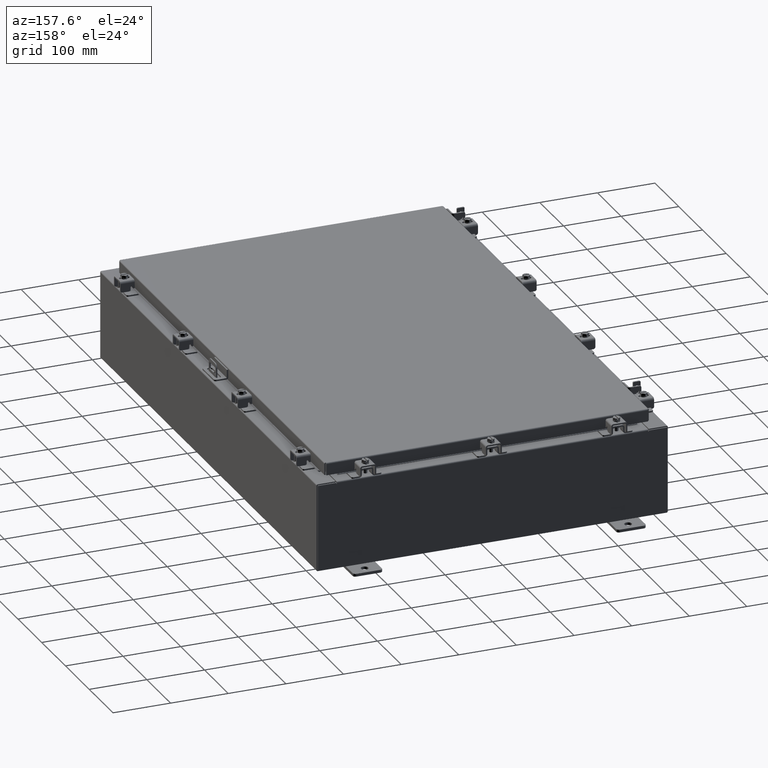
[diagram: clean part render]
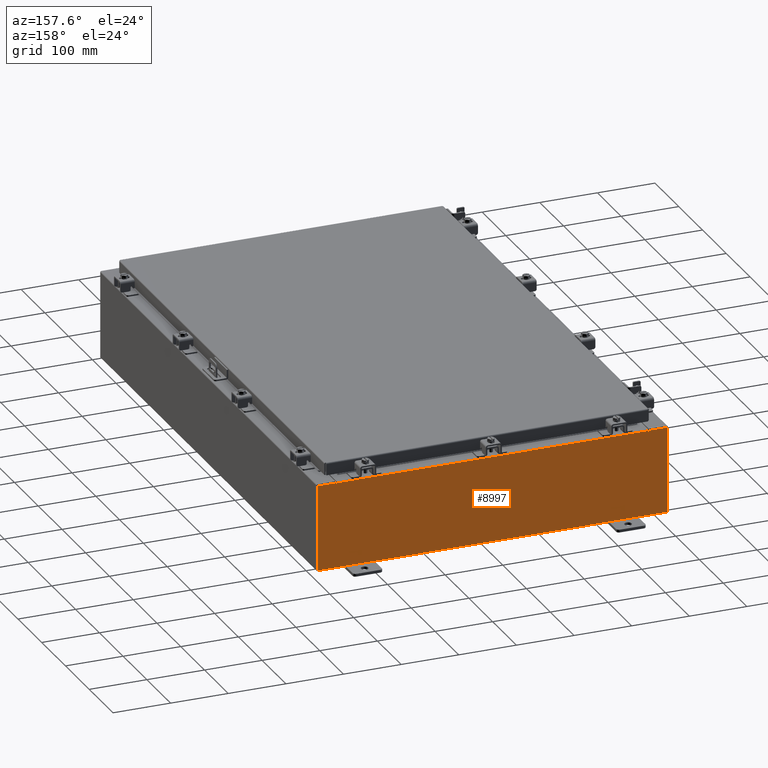
[diagram: same view with one face highlighted and labeled with its STEP entity id]
A machine part, auxiliary view. The second image highlights one B-rep face of the part: STEP entity #8997.
In plain terms, the highlighted planar face has unit normal (0, -1, 0).
Its self-contained STEP definition (entity closure, byte-faithful):
#12 = VECTOR ( 'NONE', #7814, 39.37007874015748100 ) ;
#78 = DIRECTION ( 'NONE',  ( 0.0000000000000000000, 0.0000000000000000000, -1.000000000000000000 ) ) ;
#374 = CARTESIAN_POINT ( 'NONE',  ( -10.63720000000000400, -0.0000000000000000000, 2.874950000000000600 ) ) ;
#531 = EDGE_CURVE ( 'NONE', #13784, #8247, #21600, .T. ) ;
#532 = VECTOR ( 'NONE', #11277, 39.37007874015748100 ) ;
#807 = CARTESIAN_POINT ( 'NONE',  ( -10.67455000000000200, 0.0000000000000000000, 2.874950000000000600 ) ) ;
#988 = EDGE_CURVE ( 'NONE', #16750, #14414, #4173, .T. ) ;
#1484 = DIRECTION ( 'NONE',  ( 1.000000000000000000, 0.0000000000000000000, 0.0000000000000000000 ) ) ;
#1599 = CARTESIAN_POINT ( 'NONE',  ( -11.92530000000000000, 0.0000000000000000000, -2.925299999999999600 ) ) ;
#1791 = CARTESIAN_POINT ( 'NONE',  ( -10.67455000000000200, -0.0000000000000000000, 0.0000000000000000000 ) ) ;
#2535 = DIRECTION ( 'NONE',  ( 0.0000000000000000000, 0.0000000000000000000, -1.000000000000000000 ) ) ;
#2871 = EDGE_LOOP ( 'NONE', ( #4630, #16669, #5436, #3304, #4879, #16735, #9293, #12638, #8279, #15076, #8925, #9787 ) ) ;
#2906 = VERTEX_POINT ( 'NONE', #807 ) ;
#3304 = ORIENTED_EDGE ( 'NONE', *, *, #988, .T. ) ;
#3355 = VECTOR ( 'NONE', #14492, 39.37007874015748100 ) ;
#3396 = EDGE_CURVE ( 'NONE', #16750, #6821, #9031, .T. ) ;
#3407 = DIRECTION ( 'NONE',  ( -1.000000000000000000, -0.0000000000000000000, -0.0000000000000000000 ) ) ;
#3509 = CIRCLE ( 'NONE', #20834, 0.01867499999999949400 ) ;
#3512 = LINE ( 'NONE', #9590, #12519 ) ;
#3785 = CARTESIAN_POINT ( 'NONE',  ( -11.92530000000000000, 0.0000000000000000000, -2.925299999999999600 ) ) ;
#4173 = LINE ( 'NONE', #15297, #22713 ) ;
#4423 = FACE_OUTER_BOUND ( 'NONE', #2871, .T. ) ;
#4489 = LINE ( 'NONE', #23182, #21912 ) ;
#4630 = ORIENTED_EDGE ( 'NONE', *, *, #7442, .F. ) ;
#4776 = CARTESIAN_POINT ( 'NONE',  ( 10.67455000000000200, 0.0000000000000000000, 2.925300000000000500 ) ) ;
#4793 = LINE ( 'NONE', #14976, #12 ) ;
#4796 = EDGE_CURVE ( 'NONE', #8247, #14414, #4489, .T. ) ;
#4879 = ORIENTED_EDGE ( 'NONE', *, *, #4796, .F. ) ;
#5102 = CARTESIAN_POINT ( 'NONE',  ( -11.92530000000000000, 0.0000000000000000000, 2.925300000000000500 ) ) ;
#5335 = EDGE_CURVE ( 'NONE', #6480, #13784, #18232, .T. ) ;
#5436 = ORIENTED_EDGE ( 'NONE', *, *, #3396, .F. ) ;
#5639 = PLANE ( 'NONE',  #9253 ) ;
#6269 = VERTEX_POINT ( 'NONE', #18620 ) ;
#6480 = VERTEX_POINT ( 'NONE', #4776 ) ;
#6821 = VERTEX_POINT ( 'NONE', #374 ) ;
#6993 = DIRECTION ( 'NONE',  ( 0.0000000000000000000, 0.0000000000000000000, 1.000000000000000000 ) ) ;
#7306 = EDGE_CURVE ( 'NONE', #6480, #14440, #21055, .T. ) ;
#7330 = VERTEX_POINT ( 'NONE', #5102 ) ;
#7362 = CARTESIAN_POINT ( 'NONE',  ( 0.0000000000000000000, 0.0000000000000000000, 0.0000000000000000000 ) ) ;
#7442 = EDGE_CURVE ( 'NONE', #2906, #13424, #17701, .T. ) ;
#7610 = EDGE_CURVE ( 'NONE', #8750, #7330, #19646, .T. ) ;
#7814 = DIRECTION ( 'NONE',  ( 0.0000000000000000000, 0.0000000000000000000, -1.000000000000000000 ) ) ;
#8247 = VERTEX_POINT ( 'NONE', #22258 ) ;
#8279 = ORIENTED_EDGE ( 'NONE', *, *, #17977, .T. ) ;
#8750 = VERTEX_POINT ( 'NONE', #3785 ) ;
#8925 = ORIENTED_EDGE ( 'NONE', *, *, #7610, .T. ) ;
#8997 = ADVANCED_FACE ( 'NONE', ( #4423 ), #5639, .F. ) ;
#9031 = LINE ( 'NONE', #16910, #13263 ) ;
#9224 = DIRECTION ( 'NONE',  ( 0.0000000000000000000, -1.000000000000000000, 0.0000000000000000000 ) ) ;
#9253 = AXIS2_PLACEMENT_3D ( 'NONE', #7362, #9224, #21809 ) ;
#9293 = ORIENTED_EDGE ( 'NONE', *, *, #5335, .F. ) ;
#9514 = EDGE_CURVE ( 'NONE', #6269, #8750, #22915, .T. ) ;
#9590 = CARTESIAN_POINT ( 'NONE',  ( -11.92530000000000000, 0.0000000000000000000, 2.925300000000000500 ) ) ;
#9787 = ORIENTED_EDGE ( 'NONE', *, *, #9826, .T. ) ;
#9826 = EDGE_CURVE ( 'NONE', #7330, #13424, #3512, .T. ) ;
#9831 = CARTESIAN_POINT ( 'NONE',  ( 10.65587500000000200, 0.0000000000000000000, 2.874950000000000600 ) ) ;
#9906 = DIRECTION ( 'NONE',  ( -0.0000000000000000000, 1.000000000000000000, -0.0000000000000000000 ) ) ;
#10828 = DIRECTION ( 'NONE',  ( -0.0000000000000000000, 1.000000000000000000, -0.0000000000000000000 ) ) ;
#11277 = DIRECTION ( 'NONE',  ( -0.0000000000000000000, -0.0000000000000000000, 1.000000000000000000 ) ) ;
#11507 = VECTOR ( 'NONE', #1484, 39.37007874015748100 ) ;
#12519 = VECTOR ( 'NONE', #18553, 39.37007874015748100 ) ;
#12638 = ORIENTED_EDGE ( 'NONE', *, *, #7306, .T. ) ;
#13263 = VECTOR ( 'NONE', #2535, 39.37007874015748100 ) ;
#13424 = VERTEX_POINT ( 'NONE', #15908 ) ;
#13662 = DIRECTION ( 'NONE',  ( -4.340572780400004900E-014, 0.0000000000000000000, -1.000000000000000000 ) ) ;
#13784 = VERTEX_POINT ( 'NONE', #16824 ) ;
#14237 = EDGE_CURVE ( 'NONE', #6821, #2906, #3509, .T. ) ;
#14414 = VERTEX_POINT ( 'NONE', #16658 ) ;
#14440 = VERTEX_POINT ( 'NONE', #18529 ) ;
#14492 = DIRECTION ( 'NONE',  ( 0.0000000000000000000, 0.0000000000000000000, 1.000000000000000000 ) ) ;
#14976 = CARTESIAN_POINT ( 'NONE',  ( 11.92530000000000000, 0.0000000000000000000, 2.925300000000000500 ) ) ;
#15076 = ORIENTED_EDGE ( 'NONE', *, *, #9514, .T. ) ;
#15186 = DIRECTION ( 'NONE',  ( 0.0000000000000000000, 0.0000000000000000000, -1.000000000000000000 ) ) ;
#15297 = CARTESIAN_POINT ( 'NONE',  ( -10.63720000000000400, 1.024442997624098700E-016, 2.912300000000000600 ) ) ;
#15908 = CARTESIAN_POINT ( 'NONE',  ( -10.67455000000000200, 0.0000000000000000000, 2.925300000000000500 ) ) ;
#16658 = CARTESIAN_POINT ( 'NONE',  ( 10.63720000000000400, 0.0000000000000000000, 2.912300000000000600 ) ) ;
#16669 = ORIENTED_EDGE ( 'NONE', *, *, #14237, .F. ) ;
#16735 = ORIENTED_EDGE ( 'NONE', *, *, #531, .F. ) ;
#16750 = VERTEX_POINT ( 'NONE', #22242 ) ;
#16824 = CARTESIAN_POINT ( 'NONE',  ( 10.67455000000000200, 0.0000000000000000000, 2.874950000000000600 ) ) ;
#16910 = CARTESIAN_POINT ( 'NONE',  ( -10.63720000000000400, -0.0000000000000000000, 0.0000000000000000000 ) ) ;
#17587 = VECTOR ( 'NONE', #3407, 39.37007874015748100 ) ;
#17701 = LINE ( 'NONE', #1791, #3355 ) ;
#17977 = EDGE_CURVE ( 'NONE', #14440, #6269, #4793, .T. ) ;
#18052 = AXIS2_PLACEMENT_3D ( 'NONE', #9831, #9906, #15186 ) ;
#18232 = LINE ( 'NONE', #18993, #22440 ) ;
#18529 = CARTESIAN_POINT ( 'NONE',  ( 11.92530000000000000, 0.0000000000000000000, 2.925300000000000500 ) ) ;
#18553 = DIRECTION ( 'NONE',  ( 1.000000000000000000, 0.0000000000000000000, 0.0000000000000000000 ) ) ;
#18620 = CARTESIAN_POINT ( 'NONE',  ( 11.92530000000000000, 0.0000000000000000000, -2.925299999999999600 ) ) ;
#18993 = CARTESIAN_POINT ( 'NONE',  ( 10.67454999999987700, -0.0000000000000000000, -4.633366117301834200E-013 ) ) ;
#19343 = CARTESIAN_POINT ( 'NONE',  ( -11.92530000000000000, 0.0000000000000000000, 2.925300000000000500 ) ) ;
#19646 = LINE ( 'NONE', #22050, #532 ) ;
#20175 = DIRECTION ( 'NONE',  ( 1.000000000000000000, 0.0000000000000000000, 0.0000000000000000000 ) ) ;
#20834 = AXIS2_PLACEMENT_3D ( 'NONE', #21593, #10828, #78 ) ;
#21055 = LINE ( 'NONE', #19343, #11507 ) ;
#21593 = CARTESIAN_POINT ( 'NONE',  ( -10.65587500000000200, 0.0000000000000000000, 2.874950000000000600 ) ) ;
#21600 = CIRCLE ( 'NONE', #18052, 0.01867499999999949400 ) ;
#21809 = DIRECTION ( 'NONE',  ( 0.0000000000000000000, -0.0000000000000000000, -1.000000000000000000 ) ) ;
#21912 = VECTOR ( 'NONE', #6993, 39.37007874015748100 ) ;
#22050 = CARTESIAN_POINT ( 'NONE',  ( -11.92530000000000000, 0.0000000000000000000, 2.925300000000000500 ) ) ;
#22242 = CARTESIAN_POINT ( 'NONE',  ( -10.63720000000000400, 1.024442997624098700E-016, 2.912300000000000600 ) ) ;
#22258 = CARTESIAN_POINT ( 'NONE',  ( 10.63720000000000400, 0.0000000000000000000, 2.874950000000000600 ) ) ;
#22440 = VECTOR ( 'NONE', #13662, 39.37007874015748100 ) ;
#22713 = VECTOR ( 'NONE', #20175, 39.37007874015748100 ) ;
#22915 = LINE ( 'NONE', #1599, #17587 ) ;
#23182 = CARTESIAN_POINT ( 'NONE',  ( 10.63720000000000400, 0.0000000000000000000, 0.0000000000000000000 ) ) ;